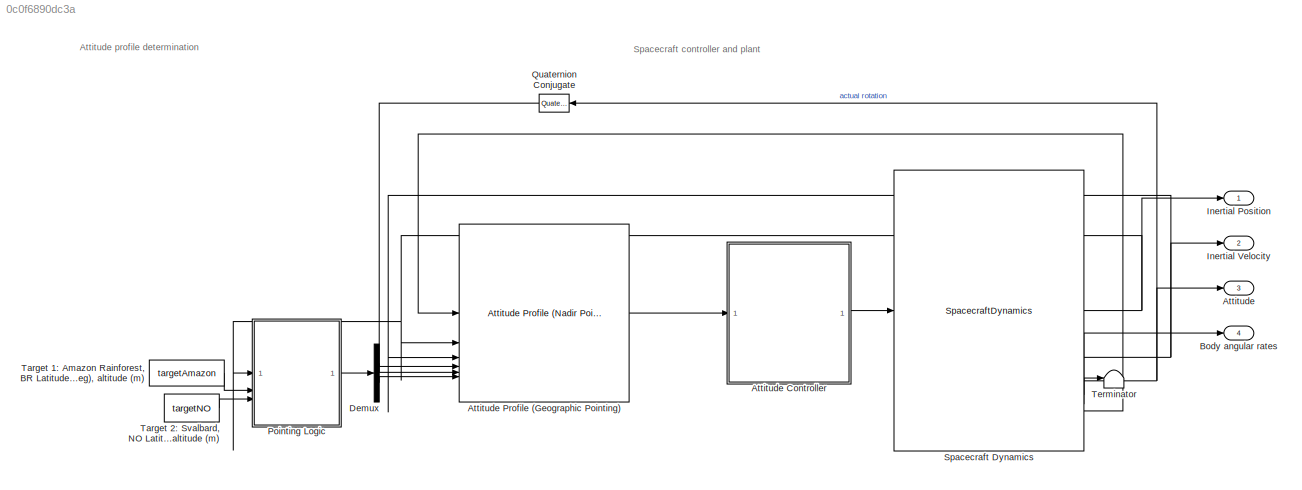
MODEL slx_0c0f6890dc3a
KIND model
CONFIG AbsTol = 1e-5
CONFIG EnableMultiTasking = off
CONFIG FixedStep = 1
CONFIG MaxStep = 5
CONFIG MinStep = auto
CONFIG RelTol = 0.5e-5
CONFIG SampleTimeConstraint = Unconstrained
CONFIG SolverName = VariableStepAuto
CONFIG StartTime = 0.0
CONFIG StopTime = 5400
BLOCK [Outport] Attitude
  Port = 3
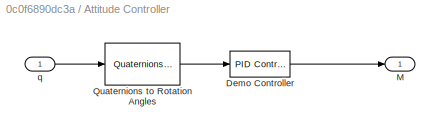
BLOCK [SubSystem] Attitude Controller
BLOCK [Reference] Attitude Controller/Demo Controller  REF=slpidlib/PID Controller
  SourceBlock = slpidlib/PID Controller
  SourceType = PID 1dof
BLOCK [Outport] Attitude Controller/M
BLOCK [Reference] Attitude Controller/Quaternions to Rotation Angles  REF=sharedtransform/Quaternions to Rotation Angles
  AttributesFormatString = Rotation Order: %<rotationOrder>
  SourceBlock = sharedtransform/Quaternions to Rotation Angles
  SourceType = Quat2Ang
BLOCK [Inport] Attitude Controller/q
BLOCK [Reference] Attitude Profile (Geographic Pointing)  REF=aerolibsatdyn/Attitude Profile
(Nadir Pointing)
  SourceBlock = aerolibsatdyn/Attitude Profile\n(Nadir Pointing)
  SourceType = Attitude Profile
BLOCK [Outport] Body angular rates
  Port = 4
BLOCK [Demux] Demux
  Outputs = [2 1]
BLOCK [Outport] Inertial Position
BLOCK [Outport] Inertial Velocity
  Port = 2
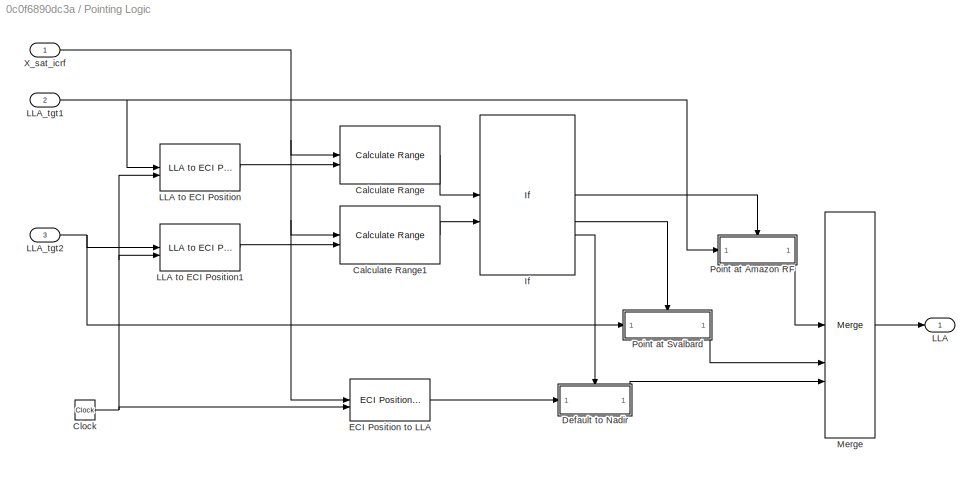
BLOCK [SubSystem] Pointing Logic
  NameLocation = top
BLOCK [Reference] Pointing Logic/Calculate Range  REF=aerolibguid/Calculate
Range
  SourceBlock = aerolibguid/Calculate\nRange
  SourceType = Calculate Range
BLOCK [Reference] Pointing Logic/Calculate Range1  REF=aerolibguid/Calculate
Range
  SourceBlock = aerolibguid/Calculate\nRange
  SourceType = Calculate Range
BLOCK [Clock] Pointing Logic/Clock
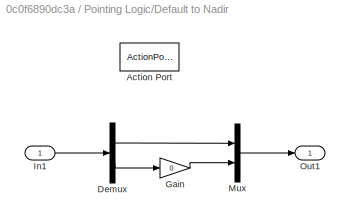
BLOCK [SubSystem] Pointing Logic/Default to Nadir
  TreatAsAtomicUnit = on
BLOCK [ActionPort] Pointing Logic/Default to Nadir/Action Port
  ActionPortLabel = else
BLOCK [Demux] Pointing Logic/Default to Nadir/Demux
  Outputs = [2, 1]
BLOCK [Gain] Pointing Logic/Default to Nadir/Gain
  Gain = 0
BLOCK [Inport] Pointing Logic/Default to Nadir/In1
BLOCK [Mux] Pointing Logic/Default to Nadir/Mux
  DisplayOption = bar
  Inputs = [2, 1]
BLOCK [Outport] Pointing Logic/Default to Nadir/Out1
BLOCK [Reference] Pointing Logic/ECI Position to LLA  REF=aerolibtransform2/ECI Position to LLA
  AttributesFormatString = %<red>
  SourceBlock = aerolibtransform2/ECI Position to LLA
  SourceType = ECItoLLA
BLOCK [If] Pointing Logic/If
  ElseIfExpressions = u2 < 2.5e6
  IfExpression = u1 < 2.5e6
  NumInputs = 2
BLOCK [Outport] Pointing Logic/LLA
BLOCK [Reference] Pointing Logic/LLA to ECI Position  REF=aerolibtransform2/LLA to ECI Position
  AttributesFormatString = %<red>
  SourceBlock = aerolibtransform2/LLA to ECI Position
  SourceType = LLAtoECI
BLOCK [Reference] Pointing Logic/LLA to ECI Position1  REF=aerolibtransform2/LLA to ECI Position
  AttributesFormatString = %<red>
  SourceBlock = aerolibtransform2/LLA to ECI Position
  SourceType = LLAtoECI
BLOCK [Inport] Pointing Logic/LLA_tgt1
  Port = 2
BLOCK [Inport] Pointing Logic/LLA_tgt2
  Port = 3
BLOCK [Merge] Pointing Logic/Merge
  Inputs = 3
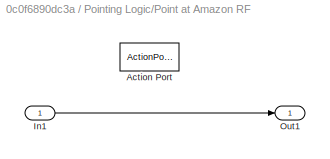
BLOCK [SubSystem] Pointing Logic/Point at Amazon RF
  TreatAsAtomicUnit = on
BLOCK [ActionPort] Pointing Logic/Point at Amazon RF/Action Port
  ActionPortLabel = if(u1 < 2.5e6)
BLOCK [Inport] Pointing Logic/Point at Amazon RF/In1
BLOCK [Outport] Pointing Logic/Point at Amazon RF/Out1
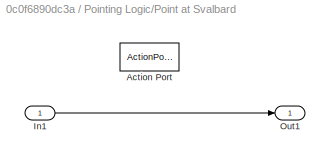
BLOCK [SubSystem] Pointing Logic/Point at Svalbard
  TreatAsAtomicUnit = on
BLOCK [ActionPort] Pointing Logic/Point at Svalbard/Action Port
  ActionPortLabel = elseif(u2 < 2.5e6)
BLOCK [Inport] Pointing Logic/Point at Svalbard/In1
BLOCK [Outport] Pointing Logic/Point at Svalbard/Out1
BLOCK [Inport] Pointing Logic/X_sat_icrf
BLOCK [Reference] Quaternion Conjugate  REF=aerolibutil/Quaternion
Conjugate
  SourceBlock = aerolibutil/Quaternion\nConjugate
  SourceType = Quaternion Conjugate
BLOCK [SpacecraftDynamics] Spacecraft Dynamics
  argPeriapsis = 0
  attitude = [0.1509 0.4868 0.3031 -0.8052]
  attitudeRate = [0 0 0]
  eccentricity = 0.05
  forcesIn = off
  inclination = 70
  inertia = eye(3)
  mass = 1
  outputTransform = on
  raan = 215
  semiMajorAxis = 7200000
  startDate = 2459216
  trueAnomaly = 200
BLOCK [Constant] Target 1: Amazon Rainforest, BR Latitude (deg), Longitude (deg), altitude (m)
  NameLocation = left
  Value = targetAmazon
BLOCK [Constant] Target 2: Svalbard, NO Latitude (deg), Longitude (deg), altitude (m)
  NameLocation = left
  Value = targetNO
BLOCK [Terminator] Terminator
ANNOTATION (root): Spacecraft controller and plant
ANNOTATION (root): Attitude profile determination
LINE Attitude Controller/Demo Controller:1 -> Attitude Controller/M:1
LINE Attitude Controller/Quaternions to Rotation Angles:1 -> Attitude Controller/Demo Controller:1
LINE Attitude Controller/q:1 -> Attitude Controller/Quaternions to Rotation Angles:1
LINE Attitude Controller:1 -> Spacecraft Dynamics:1
LINE Attitude Profile (Geographic Pointing):1 -> Attitude Controller:1
LINE Demux:1 -> Attitude Profile (Geographic Pointing):5
LINE Demux:2 -> Attitude Profile (Geographic Pointing):6
LINE Pointing Logic/Calculate Range1:1 -> Pointing Logic/If:2
LINE Pointing Logic/Calculate Range:1 -> Pointing Logic/If:1
NET Pointing Logic/Clock:1 -> Pointing Logic/ECI Position to LLA:2, Pointing Logic/LLA to ECI Position1:2, Pointing Logic/LLA to ECI Position:2
LINE Pointing Logic/Default to Nadir/Demux:1 -> Pointing Logic/Default to Nadir/Mux:1
LINE Pointing Logic/Default to Nadir/Demux:2 -> Pointing Logic/Default to Nadir/Gain:1
LINE Pointing Logic/Default to Nadir/Gain:1 -> Pointing Logic/Default to Nadir/Mux:2
LINE Pointing Logic/Default to Nadir/In1:1 -> Pointing Logic/Default to Nadir/Demux:1
LINE Pointing Logic/Default to Nadir/Mux:1 -> Pointing Logic/Default to Nadir/Out1:1
LINE Pointing Logic/Default to Nadir:1 -> Pointing Logic/Merge:3
LINE Pointing Logic/ECI Position to LLA:1 -> Pointing Logic/Default to Nadir:1
LINE Pointing Logic/If:1 -> Pointing Logic/Point at Amazon RF:ifaction
LINE Pointing Logic/If:2 -> Pointing Logic/Point at Svalbard:ifaction
LINE Pointing Logic/If:3 -> Pointing Logic/Default to Nadir:ifaction
LINE Pointing Logic/LLA to ECI Position1:1 -> Pointing Logic/Calculate Range1:2
LINE Pointing Logic/LLA to ECI Position:1 -> Pointing Logic/Calculate Range:2
NET Pointing Logic/LLA_tgt1:1 -> Pointing Logic/LLA to ECI Position:1, Pointing Logic/Point at Amazon RF:1
NET Pointing Logic/LLA_tgt2:1 -> Pointing Logic/LLA to ECI Position1:1, Pointing Logic/Point at Svalbard:1
LINE Pointing Logic/Merge:1 -> Pointing Logic/LLA:1
LINE Pointing Logic/Point at Amazon RF/In1:1 -> Pointing Logic/Point at Amazon RF/Out1:1
LINE Pointing Logic/Point at Amazon RF:1 -> Pointing Logic/Merge:1
LINE Pointing Logic/Point at Svalbard/In1:1 -> Pointing Logic/Point at Svalbard/Out1:1
LINE Pointing Logic/Point at Svalbard:1 -> Pointing Logic/Merge:2
NET Pointing Logic/X_sat_icrf:1 -> Pointing Logic/Calculate Range1:1, Pointing Logic/Calculate Range:1, Pointing Logic/ECI Position to LLA:1
LINE Pointing Logic:1 -> Demux:1
LINE Quaternion Conjugate:1 -> Attitude Profile (Geographic Pointing):4
NET Spacecraft Dynamics:1 -> Attitude Profile (Geographic Pointing):2, Inertial Position:1, Pointing Logic:1
NET Spacecraft Dynamics:2 -> Attitude Profile (Geographic Pointing):3, Inertial Velocity:1
NET Spacecraft Dynamics:3 -> Attitude:1, Quaternion Conjugate:1
LINE Spacecraft Dynamics:4 -> Body angular rates:1
LINE Spacecraft Dynamics:5 -> Terminator:1
LINE Spacecraft Dynamics:6 -> Attitude Profile (Geographic Pointing):1
LINE Target 1: Amazon Rainforest, BR Latitude (deg), Longitude (deg), altitude (m):1 -> Pointing Logic:2
LINE Target 2: Svalbard, NO Latitude (deg), Longitude (deg), altitude (m):1 -> Pointing Logic:3
note: NET lines group one-source signal fan-out (src -> all destinations, sorted); 1:1 wires keep LINE
